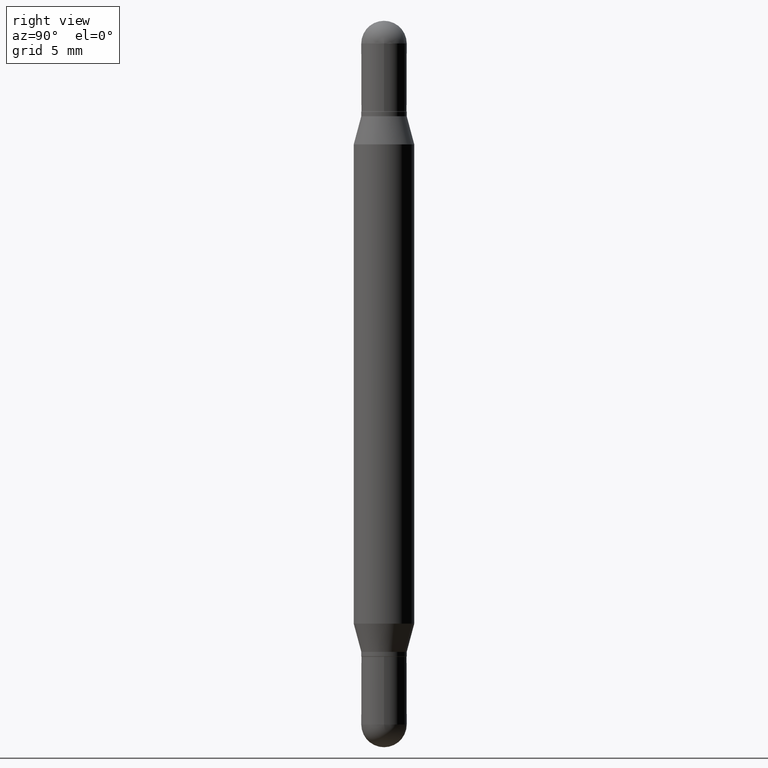
[diagram: clean part render]
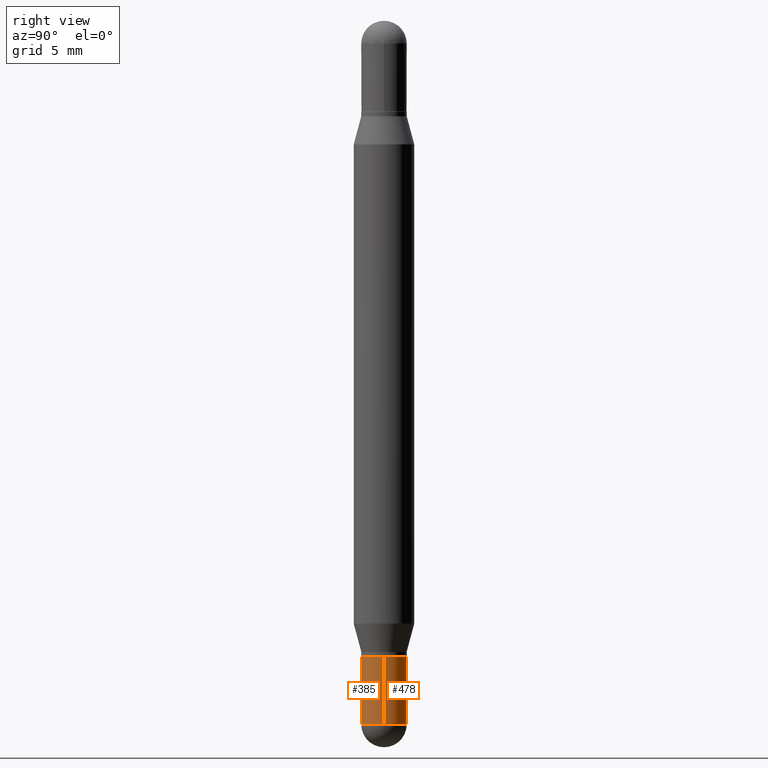
[diagram: same view with one multi-face feature highlighted, each face labeled with its STEP entity id]
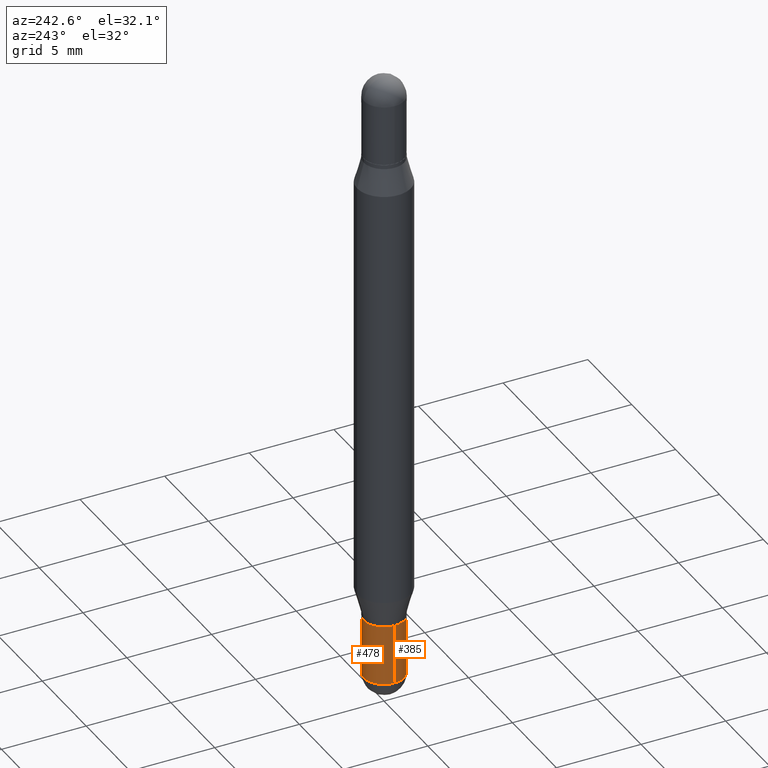
[diagram: same view with one multi-face feature highlighted, each face labeled with its STEP entity id]
A machine part, right view. The highlighted faces form ONE feature: a constant-radius fillet chain: 2 tangent blend faces with common blend radius 1.1913 mm. The faces share edges in the B-rep.
A second angle (auxiliary view) of the same feature is appended — it is thin or edge-on in the first view.
Their STEP definitions:
[1] entity #385 (Cylinder):
#90 = EDGE_LOOP ( 'NONE', ( #1043, #988, #104, #485, #1012 ) ) ;
#99 = EDGE_CURVE ( 'NONE', #598, #843, #265, .T. ) ;
#104 = ORIENTED_EDGE ( 'NONE', *, *, #113, .T. ) ;
#106 = VECTOR ( 'NONE', #520, 39.37007874015748143 ) ;
#113 = EDGE_CURVE ( 'NONE', #492, #598, #703, .T. ) ;
#130 = DIRECTION ( 'NONE',  ( 1.000000000000000000, -6.982962677686277755E-15, 0.000000000000000000 ) ) ;
#136 = EDGE_CURVE ( 'NONE', #805, #586, #955, .T. ) ;
#188 = CARTESIAN_POINT ( 'NONE',  ( 3.210900542521084585E-29, -4.584314997901050598E-15, -1.313000000000000167 ) ) ;
#265 = LINE ( 'NONE', #1054, #776 ) ;
#290 = CARTESIAN_POINT ( 'NONE',  ( 0.000000000000000000, 0.000000000000000000, 0.000000000000000000 ) ) ;
#335 = DIRECTION ( 'NONE',  ( -2.445468806185136597E-29, 3.491481338843145583E-15, 1.000000000000000000 ) ) ;
#342 = DIRECTION ( 'NONE',  ( -2.445468806185136877E-29, 3.491481338843145188E-15, 1.000000000000000000 ) ) ;
#371 = CARTESIAN_POINT ( 'NONE',  ( -3.275009495834508474E-16, -0.04690000000000513897, -1.453099999999999614 ) ) ;
#385 = ADVANCED_FACE ( 'NONE', ( #912 ), #917, .T. ) ;
#400 = AXIS2_PLACEMENT_3D ( 'NONE', #1007, #642, #130 ) ;
#401 = CARTESIAN_POINT ( 'NONE',  ( -0.04689999999999999725, -4.495648722615525747E-15, -1.453099999999999836 ) ) ;
#430 = EDGE_CURVE ( 'NONE', #805, #492, #758, .T. ) ;
#431 = CARTESIAN_POINT ( 'NONE',  ( 0.04689999999999999725, -4.911815947484537290E-15, -1.313000000000000167 ) ) ;
#440 = CARTESIAN_POINT ( 'NONE',  ( 3.553510722267622201E-29, -5.073471533472974042E-15, -1.453099999999999836 ) ) ;
#453 = AXIS2_PLACEMENT_3D ( 'NONE', #188, #335, #859 ) ;
#458 = AXIS2_PLACEMENT_3D ( 'NONE', #440, #1059, #798 ) ;
#485 = ORIENTED_EDGE ( 'NONE', *, *, #99, .T. ) ;
#492 = VERTEX_POINT ( 'NONE', #371 ) ;
#520 = DIRECTION ( 'NONE',  ( -2.445468806185136877E-29, 3.491481338843145188E-15, 1.000000000000000000 ) ) ;
#542 = CIRCLE ( 'NONE', #453, 0.04689999999999999725 ) ;
#557 = DIRECTION ( 'NONE',  ( -2.445468806185136597E-29, 3.491481338843145583E-15, 1.000000000000000000 ) ) ;
#586 = VERTEX_POINT ( 'NONE', #752 ) ;
#593 = CARTESIAN_POINT ( 'NONE',  ( 0.04689999999999999725, -5.156394215270499012E-15, -1.453099999999999836 ) ) ;
#598 = VERTEX_POINT ( 'NONE', #593 ) ;
#639 = EDGE_CURVE ( 'NONE', #586, #843, #542, .T. ) ;
#642 = DIRECTION ( 'NONE',  ( -2.445468806185136597E-29, 3.491481338843145583E-15, 1.000000000000000000 ) ) ;
#697 = CARTESIAN_POINT ( 'NONE',  ( -0.04689999999999999725, 3.332445430714869676E-16, -2.306980557329550952E-30 ) ) ;
#703 = CIRCLE ( 'NONE', #458, 0.04689999999999999725 ) ;
#752 = CARTESIAN_POINT ( 'NONE',  ( -0.04689999999999999725, -4.495648722615525747E-15, -1.313000000000000167 ) ) ;
#758 = CIRCLE ( 'NONE', #400, 0.04689999999999999725 ) ;
#776 = VECTOR ( 'NONE', #342, 39.37007874015748143 ) ;
#798 = DIRECTION ( 'NONE',  ( 1.000000000000000000, -6.982962677686277755E-15, 0.000000000000000000 ) ) ;
#805 = VERTEX_POINT ( 'NONE', #401 ) ;
#843 = VERTEX_POINT ( 'NONE', #431 ) ;
#859 = DIRECTION ( 'NONE',  ( 1.000000000000000000, -6.982962677686277755E-15, 0.000000000000000000 ) ) ;
#912 = FACE_OUTER_BOUND ( 'NONE', #90, .T. ) ;
#917 = CYLINDRICAL_SURFACE ( 'NONE', #1014, 0.04689999999999999725 ) ;
#955 = LINE ( 'NONE', #697, #106 ) ;
#988 = ORIENTED_EDGE ( 'NONE', *, *, #430, .T. ) ;
#1007 = CARTESIAN_POINT ( 'NONE',  ( 3.553510722267622201E-29, -5.073471533472974042E-15, -1.453099999999999836 ) ) ;
#1012 = ORIENTED_EDGE ( 'NONE', *, *, #639, .F. ) ;
#1014 = AXIS2_PLACEMENT_3D ( 'NONE', #290, #557, #1074 ) ;
#1043 = ORIENTED_EDGE ( 'NONE', *, *, #136, .F. ) ;
#1054 = CARTESIAN_POINT ( 'NONE',  ( 0.04689999999999999725, -3.275009495834859024E-16, 2.286926907848294038E-30 ) ) ;
#1059 = DIRECTION ( 'NONE',  ( -2.445468806185136597E-29, 3.491481338843145583E-15, 1.000000000000000000 ) ) ;
#1074 = DIRECTION ( 'NONE',  ( 1.000000000000000000, -6.982962677686266711E-15, 4.876176775795936353E-29 ) ) ;
[2] entity #478 (Cylinder):
#43 = FACE_OUTER_BOUND ( 'NONE', #840, .T. ) ;
#99 = EDGE_CURVE ( 'NONE', #598, #843, #265, .T. ) ;
#106 = VECTOR ( 'NONE', #520, 39.37007874015748143 ) ;
#119 = AXIS2_PLACEMENT_3D ( 'NONE', #513, #694, #880 ) ;
#136 = EDGE_CURVE ( 'NONE', #805, #586, #955, .T. ) ;
#139 = DIRECTION ( 'NONE',  ( 1.000000000000000000, -6.982962677686277755E-15, 0.000000000000000000 ) ) ;
#140 = CYLINDRICAL_SURFACE ( 'NONE', #314, 0.04689999999999999725 ) ;
#170 = EDGE_CURVE ( 'NONE', #843, #586, #176, .T. ) ;
#176 = CIRCLE ( 'NONE', #119, 0.04689999999999999725 ) ;
#202 = CIRCLE ( 'NONE', #531, 0.04689999999999999725 ) ;
#225 = CARTESIAN_POINT ( 'NONE',  ( 3.332445430715229101E-16, 0.04689999999999499430, -1.453100000000000058 ) ) ;
#229 = ORIENTED_EDGE ( 'NONE', *, *, #136, .T. ) ;
#265 = LINE ( 'NONE', #1054, #776 ) ;
#295 = DIRECTION ( 'NONE',  ( 1.000000000000000000, -6.982962677686266711E-15, 4.876176775795936353E-29 ) ) ;
#314 = AXIS2_PLACEMENT_3D ( 'NONE', #730, #566, #295 ) ;
#340 = ORIENTED_EDGE ( 'NONE', *, *, #99, .F. ) ;
#342 = DIRECTION ( 'NONE',  ( -2.445468806185136877E-29, 3.491481338843145188E-15, 1.000000000000000000 ) ) ;
#365 = AXIS2_PLACEMENT_3D ( 'NONE', #555, #656, #139 ) ;
#381 = ORIENTED_EDGE ( 'NONE', *, *, #519, .T. ) ;
#396 = DIRECTION ( 'NONE',  ( -2.445468806185136597E-29, 3.491481338843145583E-15, 1.000000000000000000 ) ) ;
#401 = CARTESIAN_POINT ( 'NONE',  ( -0.04689999999999999725, -4.495648722615525747E-15, -1.453099999999999836 ) ) ;
#411 = ORIENTED_EDGE ( 'NONE', *, *, #170, .F. ) ;
#431 = CARTESIAN_POINT ( 'NONE',  ( 0.04689999999999999725, -4.911815947484537290E-15, -1.313000000000000167 ) ) ;
#468 = VERTEX_POINT ( 'NONE', #225 ) ;
#478 = ADVANCED_FACE ( 'NONE', ( #43 ), #140, .T. ) ;
#513 = CARTESIAN_POINT ( 'NONE',  ( 3.210900542521084585E-29, -4.584314997901050598E-15, -1.313000000000000167 ) ) ;
#519 = EDGE_CURVE ( 'NONE', #468, #805, #957, .T. ) ;
#520 = DIRECTION ( 'NONE',  ( -2.445468806185136877E-29, 3.491481338843145188E-15, 1.000000000000000000 ) ) ;
#531 = AXIS2_PLACEMENT_3D ( 'NONE', #846, #396, #770 ) ;
#555 = CARTESIAN_POINT ( 'NONE',  ( 3.553510722267622201E-29, -5.073471533472974042E-15, -1.453099999999999836 ) ) ;
#566 = DIRECTION ( 'NONE',  ( -2.445468806185136597E-29, 3.491481338843145583E-15, 1.000000000000000000 ) ) ;
#586 = VERTEX_POINT ( 'NONE', #752 ) ;
#593 = CARTESIAN_POINT ( 'NONE',  ( 0.04689999999999999725, -5.156394215270499012E-15, -1.453099999999999836 ) ) ;
#598 = VERTEX_POINT ( 'NONE', #593 ) ;
#656 = DIRECTION ( 'NONE',  ( -2.445468806185136597E-29, 3.491481338843145583E-15, 1.000000000000000000 ) ) ;
#694 = DIRECTION ( 'NONE',  ( -2.445468806185136597E-29, 3.491481338843145583E-15, 1.000000000000000000 ) ) ;
#697 = CARTESIAN_POINT ( 'NONE',  ( -0.04689999999999999725, 3.332445430714869676E-16, -2.306980557329550952E-30 ) ) ;
#725 = EDGE_CURVE ( 'NONE', #598, #468, #202, .T. ) ;
#728 = ORIENTED_EDGE ( 'NONE', *, *, #725, .T. ) ;
#730 = CARTESIAN_POINT ( 'NONE',  ( 0.000000000000000000, 0.000000000000000000, 0.000000000000000000 ) ) ;
#752 = CARTESIAN_POINT ( 'NONE',  ( -0.04689999999999999725, -4.495648722615525747E-15, -1.313000000000000167 ) ) ;
#770 = DIRECTION ( 'NONE',  ( 1.000000000000000000, -6.982962677686277755E-15, 0.000000000000000000 ) ) ;
#776 = VECTOR ( 'NONE', #342, 39.37007874015748143 ) ;
#805 = VERTEX_POINT ( 'NONE', #401 ) ;
#840 = EDGE_LOOP ( 'NONE', ( #381, #229, #411, #340, #728 ) ) ;
#843 = VERTEX_POINT ( 'NONE', #431 ) ;
#846 = CARTESIAN_POINT ( 'NONE',  ( 3.553510722267622201E-29, -5.073471533472974042E-15, -1.453099999999999836 ) ) ;
#880 = DIRECTION ( 'NONE',  ( 1.000000000000000000, -6.982962677686277755E-15, 0.000000000000000000 ) ) ;
#955 = LINE ( 'NONE', #697, #106 ) ;
#957 = CIRCLE ( 'NONE', #365, 0.04689999999999999725 ) ;
#1054 = CARTESIAN_POINT ( 'NONE',  ( 0.04689999999999999725, -3.275009495834859024E-16, 2.286926907848294038E-30 ) ) ;